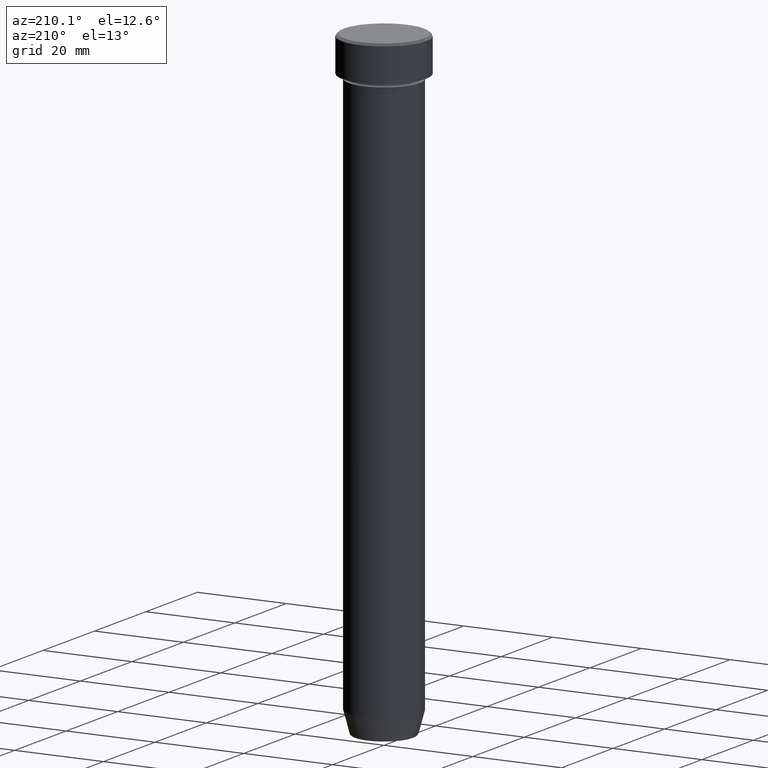
[diagram: clean part render]
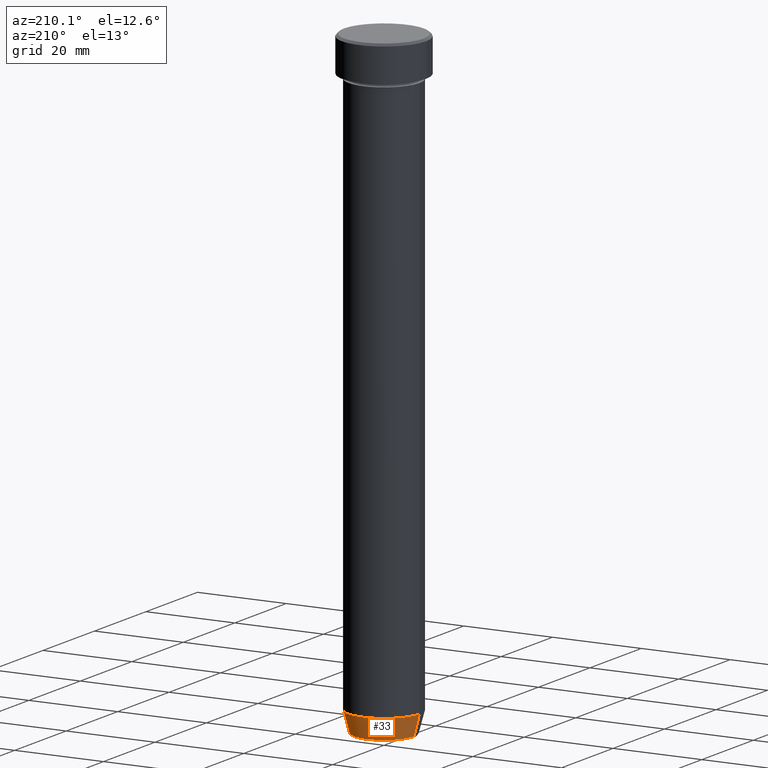
[diagram: same view with one face highlighted and labeled with its STEP entity id]
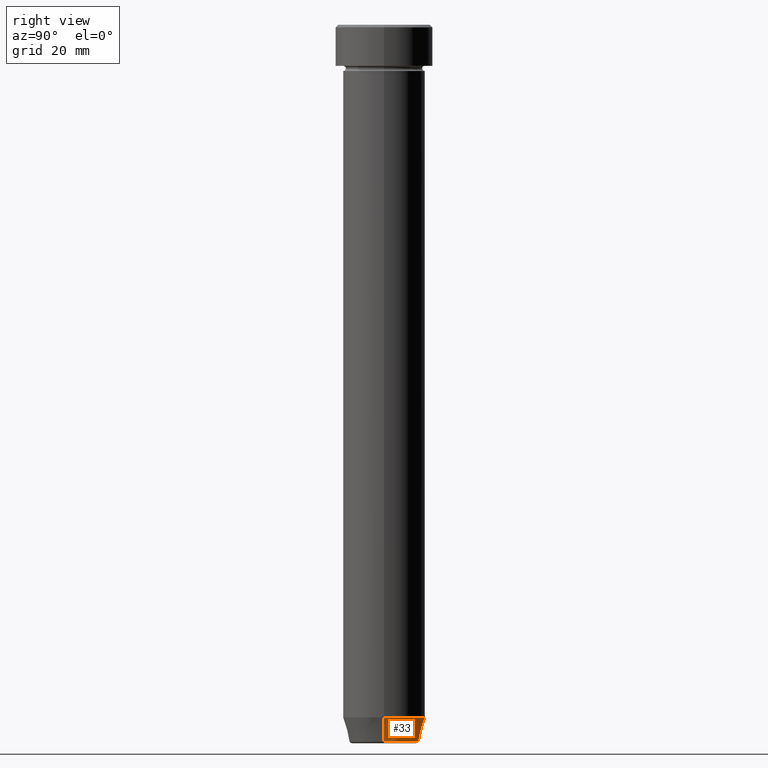
[diagram: same view with one face highlighted and labeled with its STEP entity id]
A machine part, auxiliary view. The second image highlights one B-rep face of the part: STEP entity #33.
A second angle (right view) of the same face is appended — the face is thin or edge-on in the first view.
In plain terms, the highlighted conical surface has half-angle 15 deg.
Its self-contained STEP definition (entity closure, byte-faithful):
#5 = AXIS2_PLACEMENT_3D ( 'NONE', #596, #28, #176 ) ;
#12 = ORIENTED_EDGE ( 'NONE', *, *, #433, .T. ) ;
#14 = CARTESIAN_POINT ( 'NONE',  ( -6.759553456999428001, 9.037619948979300296E-16, -139.6294095225512422 ) ) ;
#18 = LINE ( 'NONE', #385, #265 ) ;
#28 = DIRECTION ( 'NONE',  ( -0.000000000000000000, -0.000000000000000000, 1.000000000000000000 ) ) ;
#33 = ADVANCED_FACE ( 'NONE', ( #527 ), #211, .T. ) ;
#48 = DIRECTION ( 'NONE',  ( 1.000000000000000000, 0.000000000000000000, 0.000000000000000000 ) ) ;
#62 = ORIENTED_EDGE ( 'NONE', *, *, #264, .F. ) ;
#64 = CARTESIAN_POINT ( 'NONE',  ( 6.759553456999428001, 0.000000000000000000, -139.6294095225512422 ) ) ;
#79 = DIRECTION ( 'NONE',  ( -0.2588190451025214056, 3.169619151431772953E-17, 0.9659258262890680902 ) ) ;
#99 = EDGE_CURVE ( 'NONE', #558, #112, #411, .T. ) ;
#112 = VERTEX_POINT ( 'NONE', #407 ) ;
#113 = DIRECTION ( 'NONE',  ( 0.2588190451025214056, 0.000000000000000000, 0.9659258262890680902 ) ) ;
#140 = CIRCLE ( 'NONE', #440, 6.759553456999428001 ) ;
#176 = DIRECTION ( 'NONE',  ( 1.000000000000000000, 0.000000000000000000, 0.000000000000000000 ) ) ;
#211 = CONICAL_SURFACE ( 'NONE', #5, 6.660254037844373975, 0.2617993877991501295 ) ;
#216 = CARTESIAN_POINT ( 'NONE',  ( -6.660254037844373975, 8.156458788954347943E-16, -139.9999999999999716 ) ) ;
#220 = VERTEX_POINT ( 'NONE', #14 ) ;
#225 = EDGE_CURVE ( 'NONE', #327, #220, #140, .T. ) ;
#231 = CARTESIAN_POINT ( 'NONE',  ( 0.000000000000000000, 0.000000000000000000, -139.6294095225512422 ) ) ;
#236 = DIRECTION ( 'NONE',  ( -0.000000000000000000, -0.000000000000000000, 1.000000000000000000 ) ) ;
#251 = EDGE_LOOP ( 'NONE', ( #338, #12, #409, #62 ) ) ;
#264 = EDGE_CURVE ( 'NONE', #327, #558, #18, .T. ) ;
#265 = VECTOR ( 'NONE', #113, 1000.000000000000000 ) ;
#279 = DIRECTION ( 'NONE',  ( -1.000000000000000000, 0.000000000000000000, 0.000000000000000000 ) ) ;
#306 = LINE ( 'NONE', #216, #431 ) ;
#327 = VERTEX_POINT ( 'NONE', #64 ) ;
#338 = ORIENTED_EDGE ( 'NONE', *, *, #225, .T. ) ;
#385 = CARTESIAN_POINT ( 'NONE',  ( 6.660254037844373975, 0.000000000000000000, -139.9999999999999716 ) ) ;
#407 = CARTESIAN_POINT ( 'NONE',  ( -8.000000000000000000, 9.797174393178825657E-16, -134.9999999999999432 ) ) ;
#409 = ORIENTED_EDGE ( 'NONE', *, *, #99, .F. ) ;
#411 = CIRCLE ( 'NONE', #597, 8.000000000000000000 ) ;
#413 = DIRECTION ( 'NONE',  ( -0.000000000000000000, -0.000000000000000000, 1.000000000000000000 ) ) ;
#431 = VECTOR ( 'NONE', #79, 1000.000000000000000 ) ;
#433 = EDGE_CURVE ( 'NONE', #220, #112, #306, .T. ) ;
#440 = AXIS2_PLACEMENT_3D ( 'NONE', #231, #413, #279 ) ;
#466 = CARTESIAN_POINT ( 'NONE',  ( 0.000000000000000000, 0.000000000000000000, -134.9999999999999432 ) ) ;
#501 = CARTESIAN_POINT ( 'NONE',  ( 8.000000000000000000, 0.000000000000000000, -134.9999999999999432 ) ) ;
#527 = FACE_OUTER_BOUND ( 'NONE', #251, .T. ) ;
#558 = VERTEX_POINT ( 'NONE', #501 ) ;
#596 = CARTESIAN_POINT ( 'NONE',  ( 0.000000000000000000, 0.000000000000000000, -139.9999999999999716 ) ) ;
#597 = AXIS2_PLACEMENT_3D ( 'NONE', #466, #236, #48 ) ;